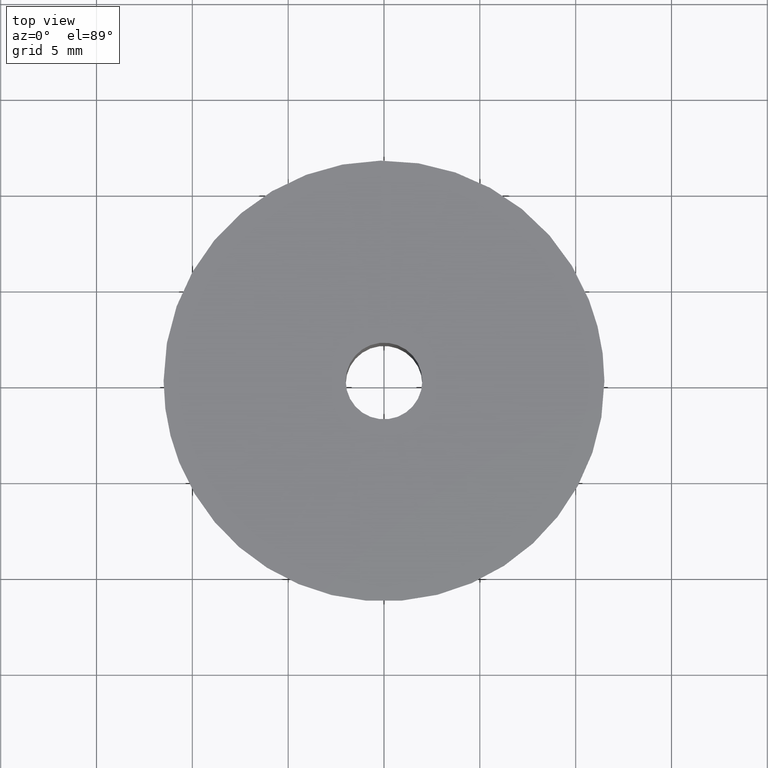
[diagram: clean part render]
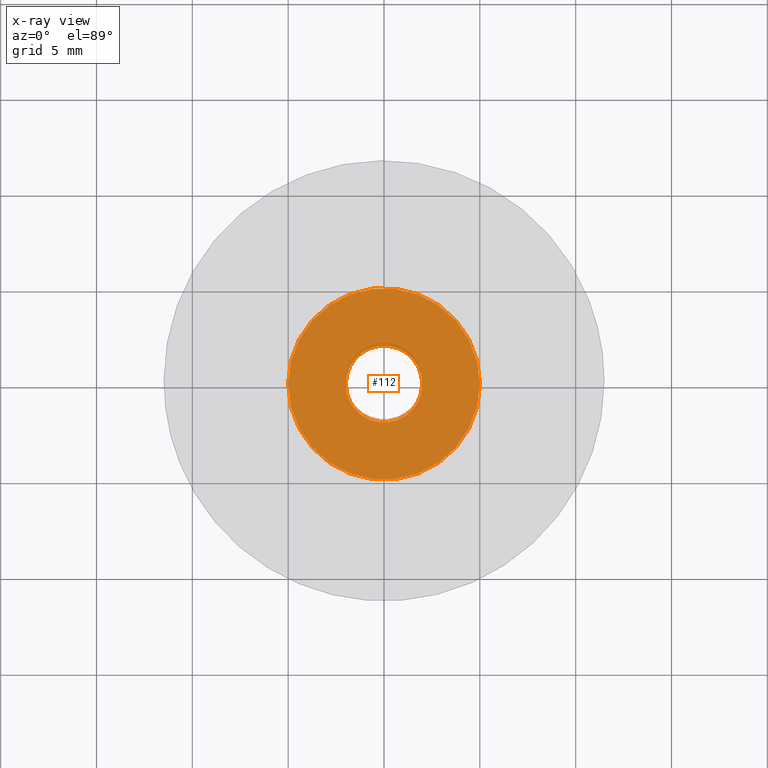
[diagram: x-ray — body ghosted, one internal face saturated and labeled with its STEP entity id]
A machine part, top view, then the same camera in x-ray: the body is ghosted and one INTERNAL B-rep face — a face not visible from any outside direction — is saturated and labeled: STEP entity #112.
In plain terms, the highlighted planar face has unit normal (0, 0, -1).
Its self-contained STEP definition (entity closure, byte-faithful):
#112=ADVANCED_FACE('',(#133,#134),#132,.F.);
#132=PLANE('',#341);
#133=FACE_OUTER_BOUND('',#342,.T.);
#134=FACE_BOUND('',#343,.T.);
#338=CARTESIAN_POINT('',(1.15000000000E+001,-1.03923048454E+001,1.08000000000E+001));
#339=DIRECTION('',(0.00000000000E+000,0.00000000000E+000,-1.00000000000E+000));
#340=DIRECTION('',(-1.00000000000E+000,0.00000000000E+000,0.00000000000E+000));
#341=AXIS2_PLACEMENT_3D('',#338,#339,#340);
#342=EDGE_LOOP('',(#498,#499,#500));
#343=EDGE_LOOP('',(#501,#502,#503));
#498=ORIENTED_EDGE('',*,*,#618,.F.);
#499=ORIENTED_EDGE('',*,*,#619,.F.);
#500=ORIENTED_EDGE('',*,*,#620,.F.);
#501=ORIENTED_EDGE('',*,*,#621,.T.);
#502=ORIENTED_EDGE('',*,*,#622,.T.);
#503=ORIENTED_EDGE('',*,*,#623,.T.);
#618=EDGE_CURVE('',#678,#679,#680,.T.);
#619=EDGE_CURVE('',#686,#678,#687,.T.);
#620=EDGE_CURVE('',#679,#686,#693,.T.);
#621=EDGE_CURVE('',#699,#700,#701,.T.);
#622=EDGE_CURVE('',#700,#707,#708,.T.);
#623=EDGE_CURVE('',#707,#699,#714,.T.);
#678=VERTEX_POINT('',#1084);
#679=VERTEX_POINT('',#1085);
#680=CIRCLE('',#1089,5.00000000000E+000);
#686=VERTEX_POINT('',#1090);
#687=CIRCLE('',#1094,5.00000000000E+000);
#693=CIRCLE('',#1098,5.00000000000E+000);
#699=VERTEX_POINT('',#1099);
#700=VERTEX_POINT('',#1100);
#701=CIRCLE('',#1104,2.00000000002E+000);
#707=VERTEX_POINT('',#1105);
#708=CIRCLE('',#1109,2.00000000002E+000);
#714=CIRCLE('',#1113,2.00000000002E+000);
#1084=CARTESIAN_POINT('',(5.90170182406E-001,-4.96504774960E+000,1.08000000000E+001));
#1085=CARTESIAN_POINT('',(-5.00000000000E+000,-6.66133814775E-016,1.08000000000E+001));
#1086=CARTESIAN_POINT('',(9.66338120634E-013,4.40536496171E-013,1.08000000000E+001));
#1087=DIRECTION('',(-1.82524189616E-014,-1.81179494156E-015,-1.00000000000E+000));
#1088=DIRECTION('',(-1.00000000000E+000,-8.78880301869E-014,1.82524189616E-014));
#1089=AXIS2_PLACEMENT_3D('',#1086,#1087,#1088);
#1090=CARTESIAN_POINT('',(-5.91028345388E-001,4.96494566888E+000,1.08000000000E+001));
#1091=CARTESIAN_POINT('',(9.66338120634E-013,4.40536496171E-013,1.08000000000E+001));
#1092=DIRECTION('',(-1.82524189616E-014,-1.81179494156E-015,-1.00000000000E+000));
#1093=DIRECTION('',(-1.00000000000E+000,-8.78880301869E-014,1.82524189616E-014));
#1094=AXIS2_PLACEMENT_3D('',#1091,#1092,#1093);
#1095=CARTESIAN_POINT('',(9.66338120634E-013,4.40536496171E-013,1.08000000000E+001));
#1096=DIRECTION('',(-1.82524189616E-014,-1.81179494156E-015,-1.00000000000E+000));
#1097=DIRECTION('',(-1.00000000000E+000,-8.78880301869E-014,1.82524189616E-014));
#1098=AXIS2_PLACEMENT_3D('',#1095,#1096,#1097);
#1099=CARTESIAN_POINT('',(-2.00000000003E+000,-2.28769480761E-017,1.08000000000E+001));
#1100=CARTESIAN_POINT('',(-2.36411790213E-001,1.98597821378E+000,1.08000000000E+001));
#1101=CARTESIAN_POINT('',(-1.73214775856E-011,1.62941882209E-011,1.08000000000E+001));
#1102=DIRECTION('',(-1.77635683938E-015,0.00000000000E+000,-1.00000000000E+000));
#1103=DIRECTION('',(-1.00000000000E+000,-8.14742717743E-012,1.77635683938E-015));
#1104=AXIS2_PLACEMENT_3D('',#1101,#1102,#1103);
#1105=CARTESIAN_POINT('',(2.36068050828E-001,-1.98601910247E+000,1.08000000000E+001));
#1106=CARTESIAN_POINT('',(-1.73214775856E-011,1.62941882209E-011,1.08000000000E+001));
#1107=DIRECTION('',(-1.77635683938E-015,0.00000000000E+000,-1.00000000000E+000));
#1108=DIRECTION('',(-1.00000000000E+000,-8.14742717743E-012,1.77635683938E-015));
#1109=AXIS2_PLACEMENT_3D('',#1106,#1107,#1108);
#1110=CARTESIAN_POINT('',(-1.73214775856E-011,1.62941882209E-011,1.08000000000E+001));
#1111=DIRECTION('',(-1.77635683938E-015,0.00000000000E+000,-1.00000000000E+000));
#1112=DIRECTION('',(-1.00000000000E+000,-8.14742717743E-012,1.77635683938E-015));
#1113=AXIS2_PLACEMENT_3D('',#1110,#1111,#1112);